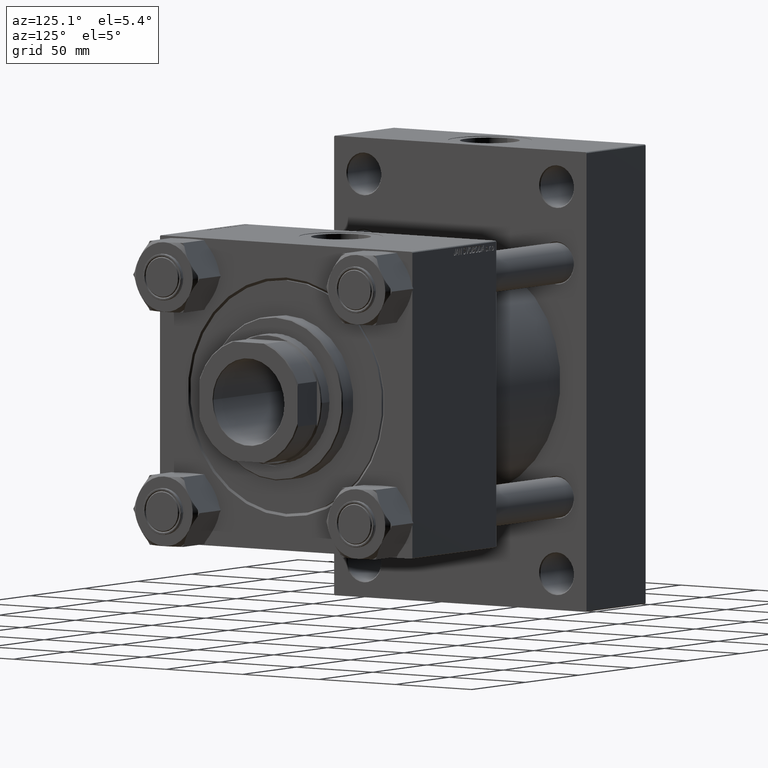
[diagram: clean part render]
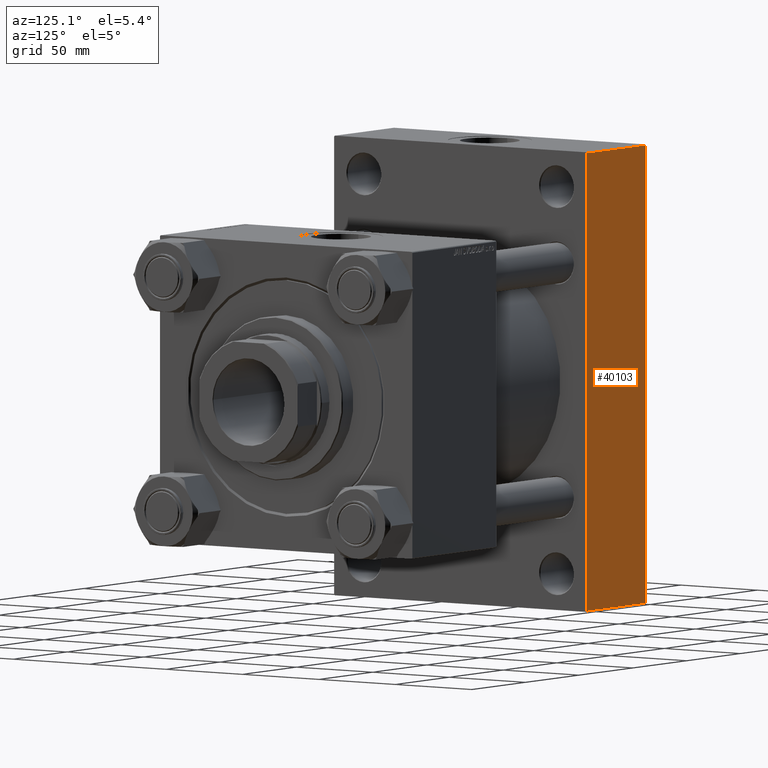
[diagram: same view with one face highlighted and labeled with its STEP entity id]
A machine part, auxiliary view. The second image highlights one B-rep face of the part: STEP entity #40103.
In plain terms, the highlighted planar face has unit normal (0, 1, 0).
Its self-contained STEP definition (entity closure, byte-faithful):
#899 = PLANE ( 'NONE',  #19440 ) ;
#2942 = DIRECTION ( 'NONE',  ( 0.000000000000000000, -0.000000000000000000, 1.000000000000000000 ) ) ;
#3940 = CARTESIAN_POINT ( 'NONE',  ( 0.000000000000000000, 82.50000000000001421, 123.0000000000000284 ) ) ;
#7057 = LINE ( 'NONE', #14466, #24512 ) ;
#7649 = ORIENTED_EDGE ( 'NONE', *, *, #28018, .T. ) ;
#8746 = ORIENTED_EDGE ( 'NONE', *, *, #11723, .F. ) ;
#8982 = CARTESIAN_POINT ( 'NONE',  ( 0.000000000000000000, 82.50000000000001421, 123.5000000000000284 ) ) ;
#10608 = DIRECTION ( 'NONE',  ( -0.000000000000000000, 1.000000000000000000, 0.000000000000000000 ) ) ;
#11723 = EDGE_CURVE ( 'NONE', #43014, #24194, #17151, .T. ) ;
#12530 = VECTOR ( 'NONE', #27506, 1000.000000000000000 ) ;
#14466 = CARTESIAN_POINT ( 'NONE',  ( 55.00000000000000000, 82.50000000000001421, 123.0000000000000284 ) ) ;
#15027 = CARTESIAN_POINT ( 'NONE',  ( 55.00000000000000000, 82.50000000000001421, -123.0000000000000000 ) ) ;
#16573 = CARTESIAN_POINT ( 'NONE',  ( 55.00000000000000000, 82.50000000000001421, -123.0000000000000000 ) ) ;
#17151 = LINE ( 'NONE', #8982, #41980 ) ;
#18441 = LINE ( 'NONE', #26608, #28116 ) ;
#18852 = LINE ( 'NONE', #15027, #12530 ) ;
#19440 = AXIS2_PLACEMENT_3D ( 'NONE', #22101, #10608, #2942 ) ;
#21330 = CARTESIAN_POINT ( 'NONE',  ( 55.00000000000000000, 82.50000000000001421, 123.0000000000000284 ) ) ;
#21485 = DIRECTION ( 'NONE',  ( 0.000000000000000000, 0.000000000000000000, -1.000000000000000000 ) ) ;
#22101 = CARTESIAN_POINT ( 'NONE',  ( 55.00000000000000000, 82.50000000000001421, 123.5000000000000284 ) ) ;
#22972 = VERTEX_POINT ( 'NONE', #21330 ) ;
#24194 = VERTEX_POINT ( 'NONE', #34790 ) ;
#24512 = VECTOR ( 'NONE', #37464, 1000.000000000000000 ) ;
#24836 = EDGE_LOOP ( 'NONE', ( #42671, #7649, #8746, #38605 ) ) ;
#26608 = CARTESIAN_POINT ( 'NONE',  ( 55.00000000000000000, 82.50000000000001421, 123.5000000000000284 ) ) ;
#27506 = DIRECTION ( 'NONE',  ( -1.000000000000000000, 0.000000000000000000, 0.000000000000000000 ) ) ;
#28018 = EDGE_CURVE ( 'NONE', #49206, #24194, #18852, .T. ) ;
#28116 = VECTOR ( 'NONE', #38372, 1000.000000000000000 ) ;
#31354 = EDGE_CURVE ( 'NONE', #22972, #49206, #18441, .T. ) ;
#34790 = CARTESIAN_POINT ( 'NONE',  ( 0.000000000000000000, 82.50000000000001421, -123.0000000000000000 ) ) ;
#35909 = FACE_OUTER_BOUND ( 'NONE', #24836, .T. ) ;
#37464 = DIRECTION ( 'NONE',  ( 1.000000000000000000, 0.000000000000000000, 0.000000000000000000 ) ) ;
#38372 = DIRECTION ( 'NONE',  ( 0.000000000000000000, 0.000000000000000000, -1.000000000000000000 ) ) ;
#38605 = ORIENTED_EDGE ( 'NONE', *, *, #49746, .T. ) ;
#40103 = ADVANCED_FACE ( 'NONE', ( #35909 ), #899, .T. ) ;
#41980 = VECTOR ( 'NONE', #21485, 1000.000000000000000 ) ;
#42671 = ORIENTED_EDGE ( 'NONE', *, *, #31354, .T. ) ;
#43014 = VERTEX_POINT ( 'NONE', #3940 ) ;
#49206 = VERTEX_POINT ( 'NONE', #16573 ) ;
#49746 = EDGE_CURVE ( 'NONE', #43014, #22972, #7057, .T. ) ;